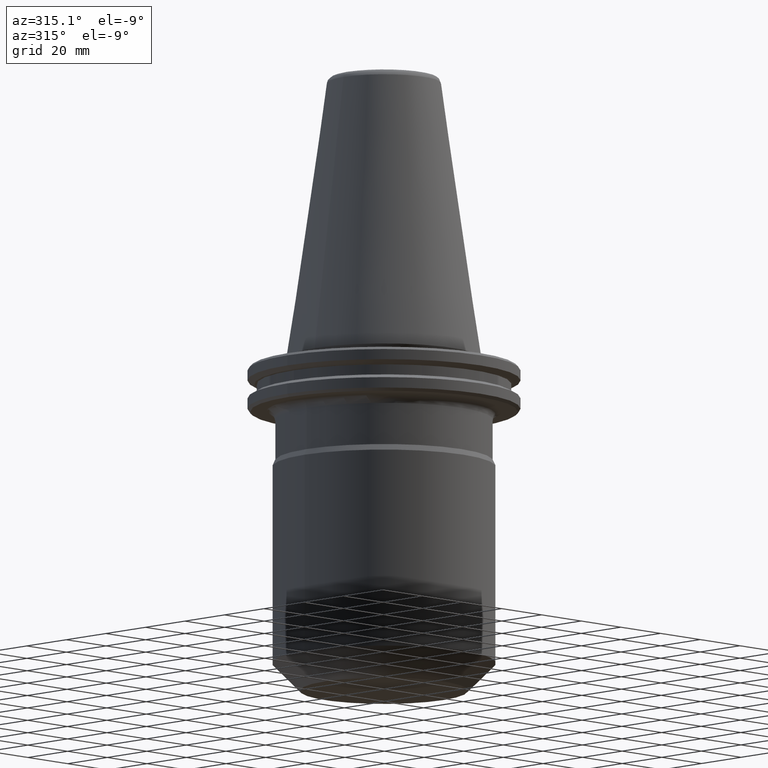
[diagram: clean part render]
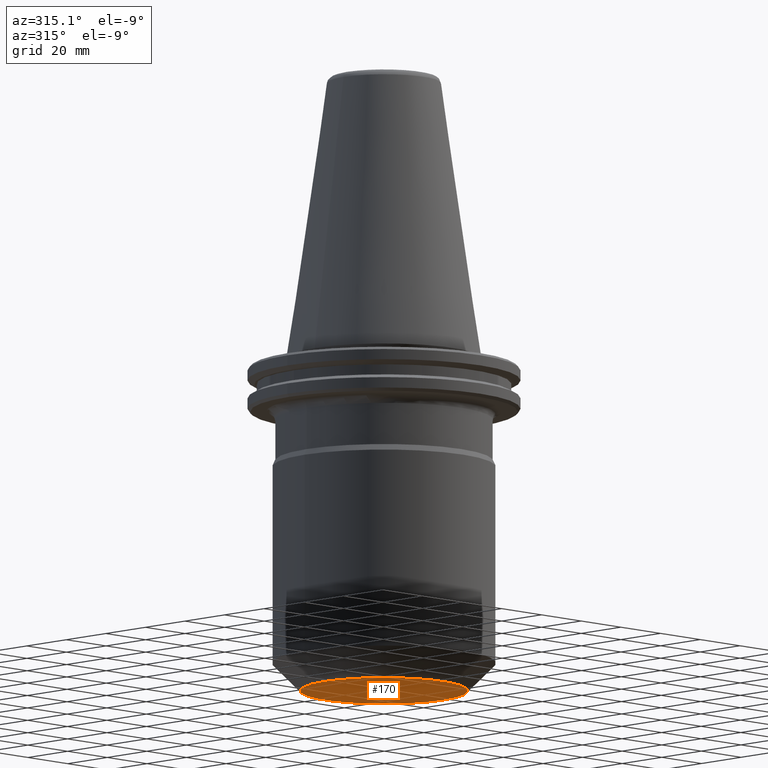
[diagram: same view with one face highlighted and labeled with its STEP entity id]
A machine part, auxiliary view. The second image highlights one B-rep face of the part: STEP entity #170.
In plain terms, the highlighted planar face has unit normal (0, -0, 1).
Its self-contained STEP definition (entity closure, byte-faithful):
#17 = AXIS2_PLACEMENT_3D ( 'NONE', #860, #942, #446 ) ;
#26 = VERTEX_POINT ( 'NONE', #454 ) ;
#57 = DIRECTION ( 'NONE',  ( 1.000000000000000000, 0.0000000000000000000, 0.0000000000000000000 ) ) ;
#108 = ORIENTED_EDGE ( 'NONE', *, *, #1019, .F. ) ;
#170 = ADVANCED_FACE ( 'NONE', ( #747 ), #427, .F. ) ;
#225 = AXIS2_PLACEMENT_3D ( 'NONE', #657, #544, #924 ) ;
#401 = CIRCLE ( 'NONE', #17, 30.00000000000000000 ) ;
#427 = PLANE ( 'NONE',  #225 ) ;
#446 = DIRECTION ( 'NONE',  ( 1.000000000000000000, 0.0000000000000000000, 0.0000000000000000000 ) ) ;
#454 = CARTESIAN_POINT ( 'NONE',  ( -30.00000000000000000, 4.286263797015735700E-015, -120.0000000000000900 ) ) ;
#544 = DIRECTION ( 'NONE',  ( 0.0000000000000000000, -0.0000000000000000000, 1.000000000000000000 ) ) ;
#657 = CARTESIAN_POINT ( 'NONE',  ( 0.0000000000000000000, 0.0000000000000000000, -120.0000000000000700 ) ) ;
#676 = CARTESIAN_POINT ( 'NONE',  ( 30.00000000000000000, 0.0000000000000000000, -120.0000000000000900 ) ) ;
#742 = CARTESIAN_POINT ( 'NONE',  ( 0.0000000000000000000, 0.0000000000000000000, -120.0000000000000900 ) ) ;
#743 = VERTEX_POINT ( 'NONE', #676 ) ;
#744 = ORIENTED_EDGE ( 'NONE', *, *, #745, .F. ) ;
#745 = EDGE_CURVE ( 'NONE', #26, #743, #1081, .T. ) ;
#747 = FACE_OUTER_BOUND ( 'NONE', #919, .T. ) ;
#752 = AXIS2_PLACEMENT_3D ( 'NONE', #742, #965, #57 ) ;
#860 = CARTESIAN_POINT ( 'NONE',  ( 0.0000000000000000000, 0.0000000000000000000, -120.0000000000000900 ) ) ;
#919 = EDGE_LOOP ( 'NONE', ( #108, #744 ) ) ;
#924 = DIRECTION ( 'NONE',  ( 1.000000000000000000, 0.0000000000000000000, 0.0000000000000000000 ) ) ;
#942 = DIRECTION ( 'NONE',  ( -0.0000000000000000000, -0.0000000000000000000, 1.000000000000000000 ) ) ;
#965 = DIRECTION ( 'NONE',  ( -0.0000000000000000000, -0.0000000000000000000, 1.000000000000000000 ) ) ;
#1019 = EDGE_CURVE ( 'NONE', #743, #26, #401, .T. ) ;
#1081 = CIRCLE ( 'NONE', #752, 30.00000000000000000 ) ;